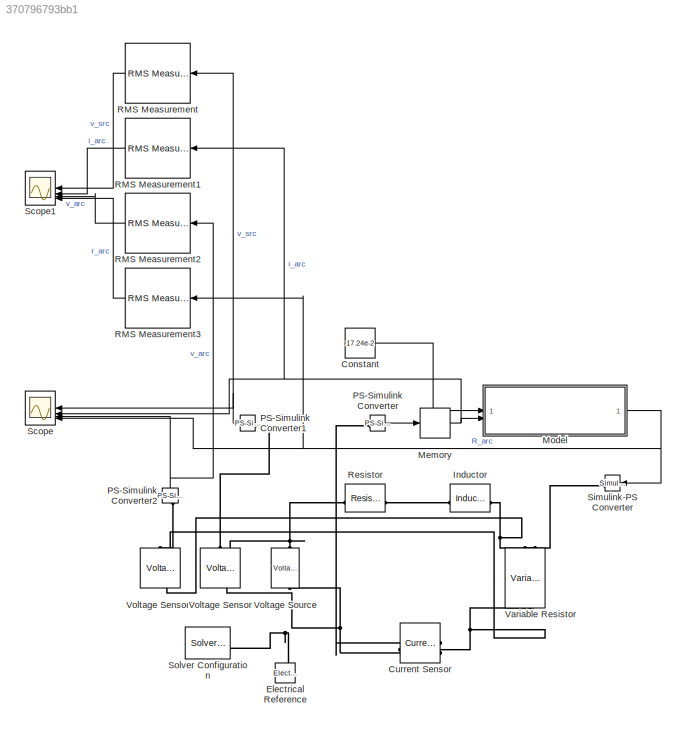
MODEL slx_370796793bb1
KIND model
CONFIG AbsTol = auto
CONFIG EnableMultiTasking = off
CONFIG FixedStep = 1e-5
CONFIG MaxStep = auto
CONFIG MinStep = auto
CONFIG RelTol = 1e-3
CONFIG SampleTimeConstraint = Unconstrained
CONFIG SolverName = ode14x
CONFIG StartTime = 0.0
CONFIG StopTime = 0.1
WORKSPACE source: mxarray member
WORKSPACE K1 = 221320
WORKSPACE K2 = 0.00072
WORKSPACE U_PhaseRMS = 243
WORKSPACE Xd = 0.003
WORKSPACE f = 50
WORKSPACE lambda = 2
WORKSPACE rd = 0.0004
BLOCK [Constant] Constant
  Value = 17.24e-2
BLOCK [Reference] Current Sensor  REF=fl_lib/Electrical/Electrical Sensors/Current Sensor
  NameLocation = top
  SourceBlock = fl_lib/Electrical/Electrical Sensors/Current Sensor
  SourceType = Current Sensor
BLOCK [Reference] Electrical Reference  REF=fl_lib/Electrical/Electrical Elements/Electrical Reference
  NameLocation = right
  SourceBlock = fl_lib/Electrical/Electrical Elements/Electrical Reference
  SourceType = Electrical Reference
BLOCK [Reference] Inductor  REF=ee_lib/Passive/Inductor
  SourceBlock = ee_lib/Passive/Inductor
  SourceType = Inductor
BLOCK [Memory] Memory
BLOCK [ModelReference] Model
  K1 = K1
  K2 = K2
  ModelNameDialog = arc.slx
  ModelReferenceVersion = 3.18
  U_PhaseRMS = U_PhaseRMS
  Xd = Xd
  f = f
  lambda = lambda
  rd = rd
BLOCK [Reference] PS-Simulink Converter  REF=nesl_utility/PS-Simulink
Converter
  SourceBlock = nesl_utility/PS-Simulink\nConverter
  SourceType = PS-Simulink\nConverter
BLOCK [Reference] PS-Simulink Converter1  REF=nesl_utility/PS-Simulink
Converter
  NameLocation = top
  SourceBlock = nesl_utility/PS-Simulink\nConverter
  SourceType = PS-Simulink\nConverter
BLOCK [Reference] PS-Simulink Converter2  REF=nesl_utility/PS-Simulink
Converter
  NameLocation = right
  SourceBlock = nesl_utility/PS-Simulink\nConverter
  SourceType = PS-Simulink\nConverter
BLOCK [Reference] RMS Measurement  REF=eeRmsMeasurement/RMS
Measurement
  LibrarySourceBlock = ee_sl_lib/Measurements/RMS\nMeasurement
  NameLocation = top
  SourceBlock = eeRmsMeasurement/RMS\nMeasurement
  SourceType = RMS Measurement
BLOCK [Reference] RMS Measurement1  REF=eeRmsMeasurement/RMS
Measurement
  LibrarySourceBlock = ee_sl_lib/Measurements/RMS\nMeasurement
  NameLocation = top
  SourceBlock = eeRmsMeasurement/RMS\nMeasurement
  SourceType = RMS Measurement
BLOCK [Reference] RMS Measurement2  REF=eeRmsMeasurement/RMS
Measurement
  LibrarySourceBlock = ee_sl_lib/Measurements/RMS\nMeasurement
  NameLocation = top
  SourceBlock = eeRmsMeasurement/RMS\nMeasurement
  SourceType = RMS Measurement
BLOCK [Reference] RMS Measurement3  REF=eeRmsMeasurement/RMS
Measurement
  LibrarySourceBlock = ee_sl_lib/Measurements/RMS\nMeasurement
  NameLocation = top
  SourceBlock = eeRmsMeasurement/RMS\nMeasurement
  SourceType = RMS Measurement
BLOCK [Reference] Resistor  REF=fl_lib/Electrical/Electrical Elements/Resistor
  SourceBlock = fl_lib/Electrical/Electrical Elements/Resistor
  SourceType = Resistor
BLOCK [Scope] Scope
  ActiveDisplayYMaximum = 429.56510099680634
  ActiveDisplayYMinimum = -429.56624970224857
  Floating = off
  GraphicalSettings = {"Style":{"BackgroundColor":[0.12941176470588237,0.12941176470588237,0.12941176470588237],"AxesColor":[0.07058823529411765,0.07058823529411765,0.07058823529411765],"LabelsColor":[0.8509803921568627,0.8509803921568627,0.8509803921568627],"PreserveColors":false,"Visible":[true,true,true,true],"LineStyle":["-","-","-","-"],"LineWidth":[1.5,1.5,1.5,1.5],"BarWidth":[0.9,0.9,0.9,0.9],"LineColor":["auto"...<+3274ch>
  LayoutDimensionsString = [2,2]
  MultipleDisplayCache = [{"MaxYLimMag":429.56624970224857,"MaxYLimReal":429.56510099680634,"MinYLimMag":0,"MinYLimReal":-429.56624970224857,"PlotAsMagnitudePhase":false,"ShowGrid":true,"ShowLegend":true,"Title":"%<SignalLabel>","YLabel":""},{"MaxYLimMag":64297.32857761105,"MaxYLimReal":64192.114299131572,"MinYLimMag":0,"MinYLimReal":-64297.32857761105,"PlotAsMagnitudePhase":false,"ShowGrid":true,"ShowLegend":true,"Title"...<+467ch>
  NameLocation = top
  NumInputPorts = 4
  ScopeFrameLocation = window
  ShowLegend = on
  WasSavedAsWebScope = on
  WindowPosition = [1.000000,49.000000,2560.000000,1369.000000,]
BLOCK [Scope] Scope1
  ActiveDisplayYMaximum = 273.37506870684871
  ActiveDisplayYMinimum = -30.375007634094295
  DataLoggingVariableName = ScopeData1
  Floating = off
  GraphicalSettings = {"Style":{"BackgroundColor":[0.12941176470588237,0.12941176470588237,0.12941176470588237],"AxesColor":[0.07058823529411765,0.07058823529411765,0.07058823529411765],"LabelsColor":[0.8509803921568627,0.8509803921568627,0.8509803921568627],"PreserveColors":false,"Visible":[true,true,true,true],"LineStyle":["-","-","-","-"],"LineWidth":[1.5,1.5,1.5,1.5],"BarWidth":[0.9,0.9,0.9,0.9],"LineColor":["auto"...<+3276ch>
  LayoutDimensionsString = [2,2]
  MultipleDisplayCache = [{"MaxYLimMag":273.37506870684871,"MaxYLimReal":273.37506870684871,"MinYLimMag":0,"MinYLimReal":-30.375007634094295,"PlotAsMagnitudePhase":false,"ShowGrid":true,"ShowLegend":true,"Title":"%<SignalLabel>","YLabel":""},{"MaxYLimMag":53400.5327330409,"MaxYLimReal":53400.5327330409,"MinYLimMag":0,"MinYLimReal":-5933.3925258934323,"PlotAsMagnitudePhase":false,"ShowGrid":true,"ShowLegend":true,"Title":"...<+468ch>
  NameLocation = top
  NumInputPorts = 4
  ScopeFrameLocation = window
  ShowLegend = on
  WasSavedAsWebScope = on
  WindowPosition = [366.000000,216.000000,1594.000000,1062.000000,]
BLOCK [Reference] Simulink-PS Converter  REF=nesl_utility/Simulink-PS
Converter
  NameLocation = top
  SourceBlock = nesl_utility/Simulink-PS\nConverter
  SourceType = Simulink-PS\nConverter
BLOCK [Reference] Solver Configuration  REF=nesl_utility/Solver
Configuration
  SourceBlock = nesl_utility/Solver\nConfiguration
  SourceType = Solver\nConfiguration
BLOCK [Reference] Variable Resistor  REF=fl_lib/Electrical/Electrical Elements/Variable Resistor
  NameLocation = left
  SourceBlock = fl_lib/Electrical/Electrical Elements/Variable Resistor
  SourceType = Variable Resistor
BLOCK [Reference] Voltage Sensor  REF=fl_lib/Electrical/Electrical Sensors/Voltage Sensor
  NameLocation = left
  SourceBlock = fl_lib/Electrical/Electrical Sensors/Voltage Sensor
  SourceType = Voltage Sensor
BLOCK [Reference] Voltage Sensor1  REF=fl_lib/Electrical/Electrical Sensors/Voltage Sensor
  NameLocation = left
  SourceBlock = fl_lib/Electrical/Electrical Sensors/Voltage Sensor
  SourceType = Voltage Sensor
BLOCK [Reference] Voltage Source  REF=ee_lib/Sources/Voltage Source
  NameLocation = right
  SourceBlock = ee_lib/Sources/Voltage Source
  SourceType = Voltage Source
LINE Constant:1 -> Model:1
NET Memory:1 -> Model:2, RMS Measurement1:1, Scope:2
NET Model:1 -> RMS Measurement3:1, Scope:4, Simulink-PS Converter:1
NET PS-Simulink Converter1:1 -> RMS Measurement:1, Scope:1
NET PS-Simulink Converter2:1 -> RMS Measurement2:1, Scope:3
LINE PS-Simulink Converter:1 -> Memory:1
LINE RMS Measurement1:1 -> Scope1:2
LINE RMS Measurement2:1 -> Scope1:3
LINE RMS Measurement3:1 -> Scope1:4
LINE RMS Measurement:1 -> Scope1:1
PNET net1: Current Sensor:LConn1 -- Variable Resistor:RConn1 -- Voltage Sensor1:RConn2
PLINE Current Sensor:RConn1 -- PS-Simulink Converter:LConn1
PNET net2: Current Sensor:RConn2 -- Electrical Reference:LConn1 -- Solver Configuration:RConn1 -- Voltage Sensor:LConn1 -- Voltage Source:RConn1
PLINE Inductor:LConn1 -- Resistor:RConn1
PNET net3: Inductor:RConn1 -- Variable Resistor:LConn2 -- Voltage Sensor1:LConn1
PLINE PS-Simulink Converter1:LConn1 -- Voltage Sensor:RConn1
PLINE PS-Simulink Converter2:LConn1 -- Voltage Sensor1:RConn1
PNET net4: Resistor:LConn1 -- Voltage Sensor:RConn2 -- Voltage Source:LConn1
PLINE Simulink-PS Converter:RConn1 -- Variable Resistor:LConn1
note: NET lines group one-source signal fan-out (src -> all destinations, sorted); 1:1 wires keep LINE; PNET lines group multi-terminal physical nets as a canonical sorted terminal list (undirected conserving connections); 2-terminal nets keep the pairwise PLINE form
